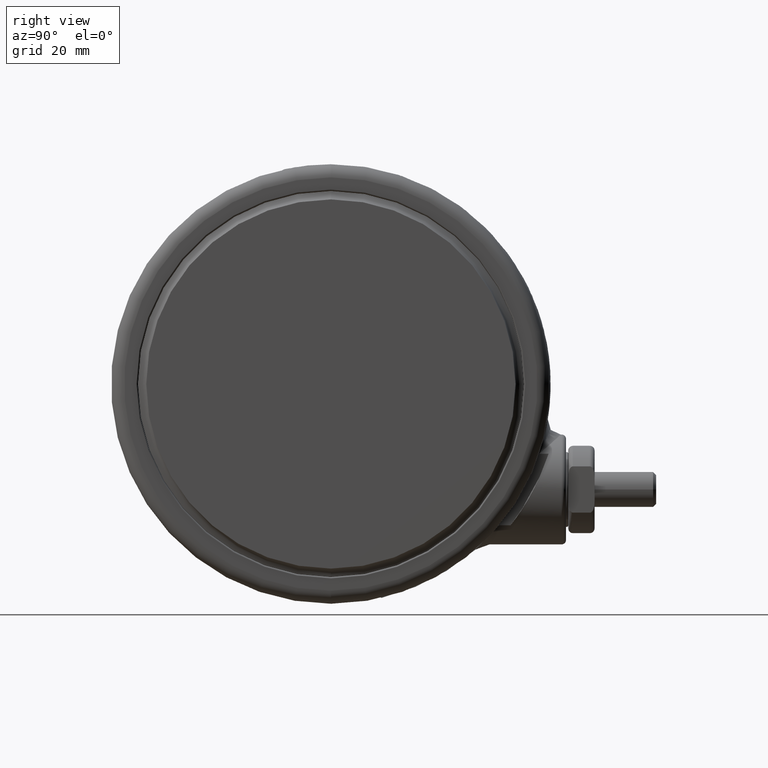
[diagram: clean part render]
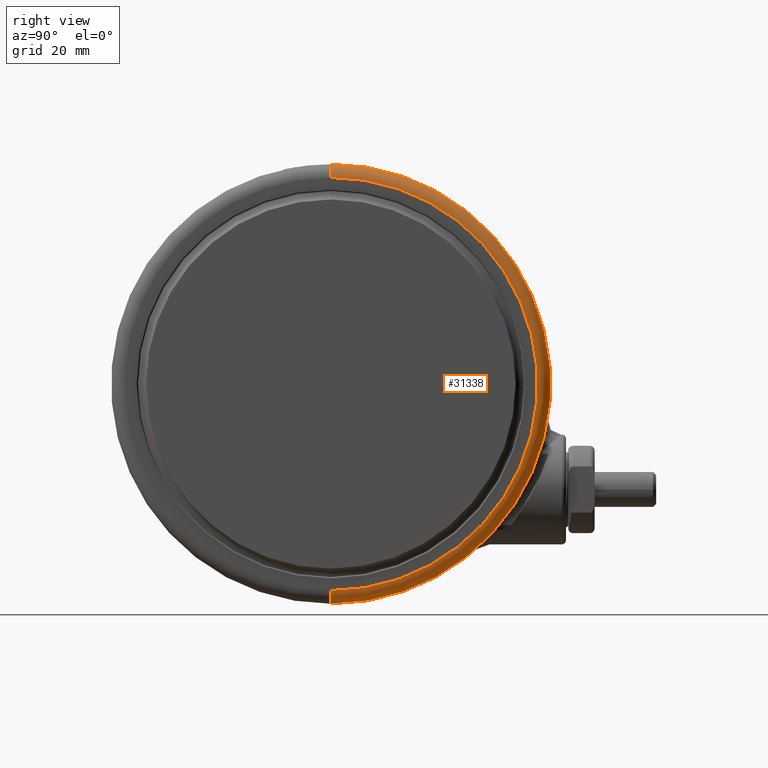
[diagram: same view with one face highlighted and labeled with its STEP entity id]
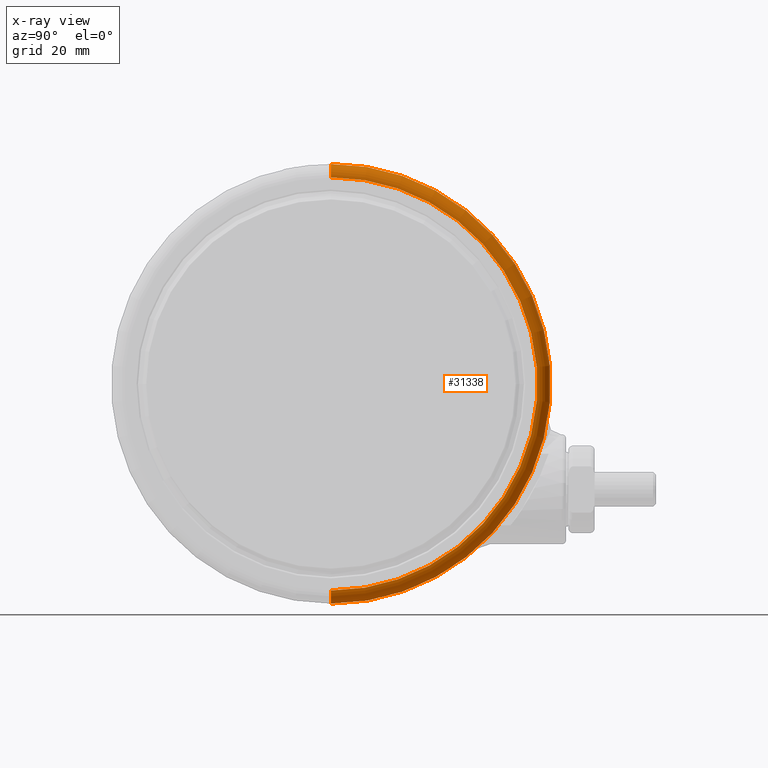
[diagram: x-ray of the same camera — body ghosted, the highlighted face saturated]
A machine part, right view. The second image highlights one B-rep face of the part: STEP entity #31338.
The next image is the same camera in x-ray: the body ghosted, the highlighted face saturated — about 0% of this face is hidden behind the body in this view.
In plain terms, the highlighted toroidal blend (fillet) surface has major radius 47 mm and minor (blend) radius 3 mm.
Its self-contained STEP definition (entity closure, byte-faithful):
#608 = CIRCLE ( 'NONE', #22545, 3.000000000000000900 ) ;
#1117 = DIRECTION ( 'NONE',  ( -0.0000000000000000000, -1.000000000000000000, -0.0000000000000000000 ) ) ;
#3476 = CARTESIAN_POINT ( 'NONE',  ( 1.387778780781445700E-014, -1.734723475976807100E-015, -5.099999999999880600 ) ) ;
#4729 = EDGE_CURVE ( 'NONE', #14712, #27103, #7693, .T. ) ;
#5459 = CARTESIAN_POINT ( 'NONE',  ( 50.00000000000001400, 4.388510519759959000E-015, -5.099999999999880600 ) ) ;
#5620 = CARTESIAN_POINT ( 'NONE',  ( -46.99999999999998600, -1.734723475976807100E-015, -2.099999999999990800 ) ) ;
#5973 = DIRECTION ( 'NONE',  ( -1.000000000000000000, 0.0000000000000000000, 0.0000000000000000000 ) ) ;
#6268 = CIRCLE ( 'NONE', #24469, 3.000000000000002700 ) ;
#7693 = CIRCLE ( 'NONE', #7982, 47.00000000000000000 ) ;
#7982 = AXIS2_PLACEMENT_3D ( 'NONE', #29812, #14866, #32344 ) ;
#8556 = EDGE_LOOP ( 'NONE', ( #19889, #14233, #26374, #19540 ) ) ;
#10888 = TOROIDAL_SURFACE ( 'NONE', #31862, 47.00000000000000000, 3.000000000000000000 ) ;
#11897 = DIRECTION ( 'NONE',  ( 0.0000000000000000000, 0.0000000000000000000, -1.000000000000000000 ) ) ;
#14233 = ORIENTED_EDGE ( 'NONE', *, *, #27808, .T. ) ;
#14410 = CARTESIAN_POINT ( 'NONE',  ( 1.387778780781445700E-014, -1.734723475976807100E-015, -5.099999999999880600 ) ) ;
#14640 = CIRCLE ( 'NONE', #28020, 50.00000000000000000 ) ;
#14712 = VERTEX_POINT ( 'NONE', #19532 ) ;
#14733 = DIRECTION ( 'NONE',  ( -1.224646799147353200E-016, 1.000000000000000000, 0.0000000000000000000 ) ) ;
#14866 = DIRECTION ( 'NONE',  ( -0.0000000000000000000, -0.0000000000000000000, 1.000000000000000000 ) ) ;
#16063 = CARTESIAN_POINT ( 'NONE',  ( -46.99999999999998600, -1.734723475976807100E-015, -5.099999999999880600 ) ) ;
#18397 = EDGE_CURVE ( 'NONE', #27103, #22888, #608, .T. ) ;
#18571 = DIRECTION ( 'NONE',  ( 0.0000000000000000000, 0.0000000000000000000, -1.000000000000000000 ) ) ;
#18939 = EDGE_CURVE ( 'NONE', #22888, #19998, #14640, .T. ) ;
#19308 = DIRECTION ( 'NONE',  ( -1.000000000000000000, 0.0000000000000000000, 0.0000000000000000000 ) ) ;
#19532 = CARTESIAN_POINT ( 'NONE',  ( 47.00000000000001400, 4.204813499887857100E-015, -2.099999999999990800 ) ) ;
#19540 = ORIENTED_EDGE ( 'NONE', *, *, #18397, .F. ) ;
#19889 = ORIENTED_EDGE ( 'NONE', *, *, #4729, .F. ) ;
#19998 = VERTEX_POINT ( 'NONE', #5459 ) ;
#20945 = DIRECTION ( 'NONE',  ( 0.0000000000000000000, 0.0000000000000000000, -1.000000000000000000 ) ) ;
#22545 = AXIS2_PLACEMENT_3D ( 'NONE', #16063, #1117, #18571 ) ;
#22888 = VERTEX_POINT ( 'NONE', #31819 ) ;
#24469 = AXIS2_PLACEMENT_3D ( 'NONE', #29675, #14733, #32205 ) ;
#26374 = ORIENTED_EDGE ( 'NONE', *, *, #18939, .F. ) ;
#27103 = VERTEX_POINT ( 'NONE', #5620 ) ;
#27808 = EDGE_CURVE ( 'NONE', #14712, #19998, #6268, .T. ) ;
#28020 = AXIS2_PLACEMENT_3D ( 'NONE', #3476, #20945, #5973 ) ;
#29675 = CARTESIAN_POINT ( 'NONE',  ( 47.00000000000001400, 4.021116480015753500E-015, -5.099999999999880600 ) ) ;
#29812 = CARTESIAN_POINT ( 'NONE',  ( 1.387778780781445700E-014, -1.734723475976807100E-015, -2.099999999999990800 ) ) ;
#30810 = FACE_OUTER_BOUND ( 'NONE', #8556, .T. ) ;
#31338 = ADVANCED_FACE ( 'NONE', ( #30810 ), #10888, .T. ) ;
#31819 = CARTESIAN_POINT ( 'NONE',  ( -49.99999999999998600, -1.734723475976807100E-015, -5.099999999999880600 ) ) ;
#31862 = AXIS2_PLACEMENT_3D ( 'NONE', #14410, #11897, #19308 ) ;
#32205 = DIRECTION ( 'NONE',  ( -1.000000000000000000, -1.224646799147352000E-016, 0.0000000000000000000 ) ) ;
#32344 = DIRECTION ( 'NONE',  ( -1.000000000000000000, 0.0000000000000000000, 0.0000000000000000000 ) ) ;